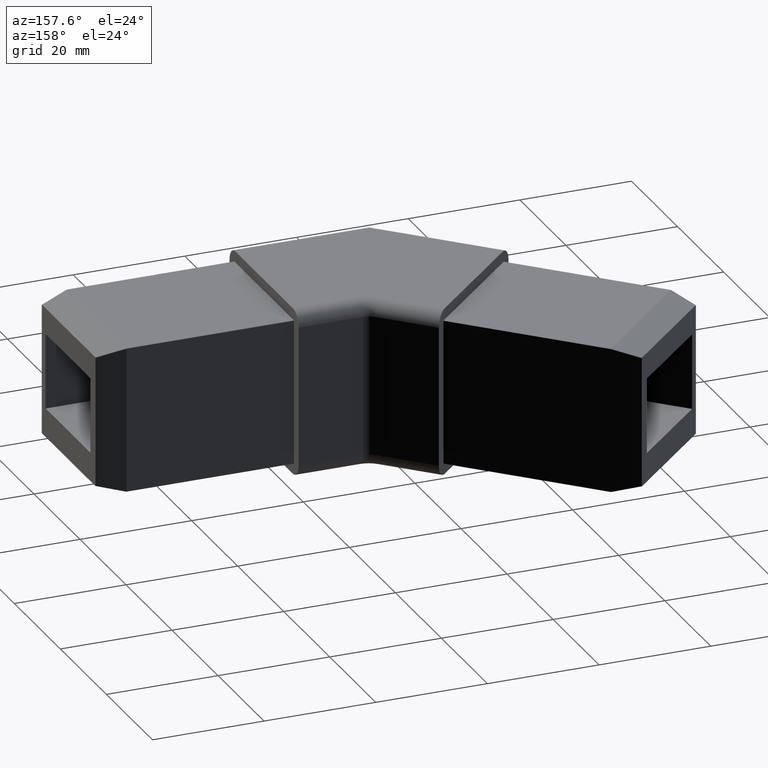
[diagram: clean part render]
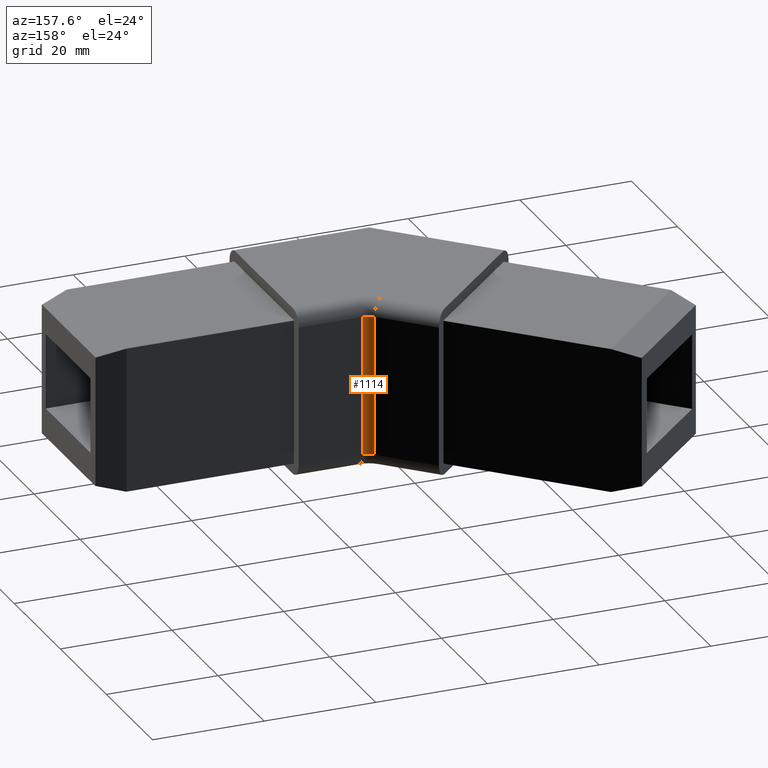
[diagram: same view with one face highlighted and labeled with its STEP entity id]
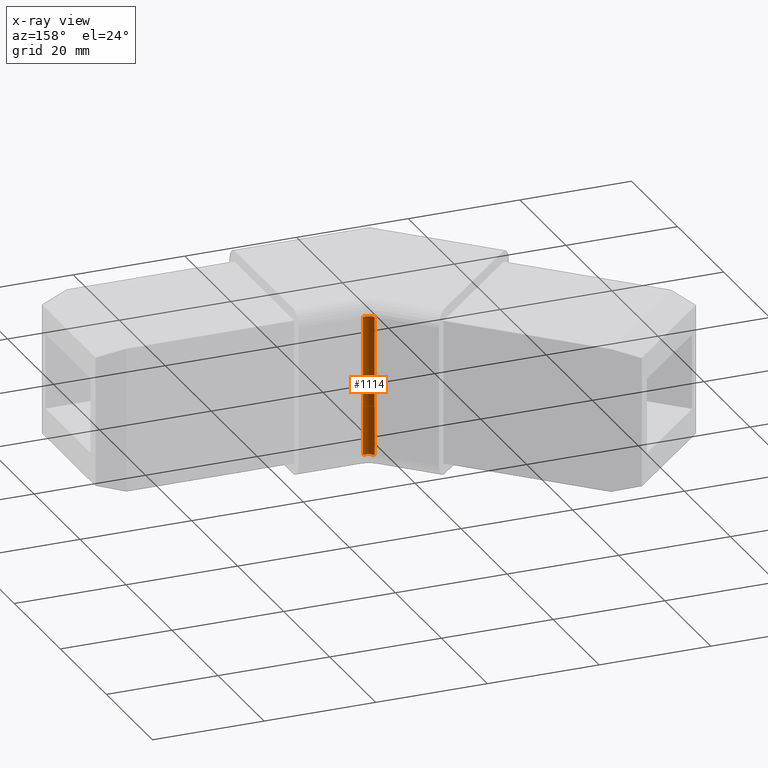
[diagram: x-ray of the same camera — body ghosted, the highlighted face saturated]
A machine part, auxiliary view. The second image highlights one B-rep face of the part: STEP entity #1114.
The next image is the same camera in x-ray: the body ghosted, the highlighted face saturated — about 0% of this face is hidden behind the body in this view.
In plain terms, the highlighted cylindrical surface (edge-blend (fillet) strip) has radius 2.5 mm, axis along (0, 0, 1).
Its self-contained STEP definition (entity closure, byte-faithful):
#33=CIRCLE('',#1236,2.5);
#37=CIRCLE('',#1242,2.5);
#102=CYLINDRICAL_SURFACE('',#1245,2.5);
#152=FACE_OUTER_BOUND('',#216,.T.);
#216=EDGE_LOOP('',(#929,#930,#931,#932));
#313=LINE('',#1877,#415);
#314=LINE('',#1878,#416);
#415=VECTOR('',#1535,10.);
#416=VECTOR('',#1536,10.);
#521=VERTEX_POINT('',#1856);
#522=VERTEX_POINT('',#1858);
#525=VERTEX_POINT('',#1868);
#527=VERTEX_POINT('',#1871);
#663=EDGE_CURVE('',#522,#521,#33,.F.);
#669=EDGE_CURVE('',#527,#525,#37,.F.);
#672=EDGE_CURVE('',#525,#522,#313,.T.);
#673=EDGE_CURVE('',#521,#527,#314,.T.);
#929=ORIENTED_EDGE('',*,*,#669,.T.);
#930=ORIENTED_EDGE('',*,*,#672,.T.);
#931=ORIENTED_EDGE('',*,*,#663,.T.);
#932=ORIENTED_EDGE('',*,*,#673,.T.);
#1114=ADVANCED_FACE('',(#152),#102,.F.);
#1236=AXIS2_PLACEMENT_3D('',#1859,#1513,#1514);
#1242=AXIS2_PLACEMENT_3D('',#1872,#1527,#1528);
#1245=AXIS2_PLACEMENT_3D('',#1876,#1533,#1534);
#1513=DIRECTION('center_axis',(0.,0.,1.));
#1514=DIRECTION('ref_axis',(0.,-1.,0.));
#1527=DIRECTION('center_axis',(0.,0.,-1.));
#1528=DIRECTION('ref_axis',(-0.707106781186548,-0.707106781186548,0.));
#1533=DIRECTION('center_axis',(0.,0.,1.));
#1534=DIRECTION('ref_axis',(-0.38268343236509,-0.923879532511287,0.));
#1535=DIRECTION('',(0.,0.,-1.));
#1536=DIRECTION('',(0.,0.,1.));
#1856=CARTESIAN_POINT('',(5.48097038856281,15.7322330470336,2.5));
#1858=CARTESIAN_POINT('',(7.24873734152918,15.,2.5));
#1859=CARTESIAN_POINT('Origin',(7.24873734152918,17.5,2.5));
#1868=CARTESIAN_POINT('',(7.24873734152918,15.,27.5));
#1871=CARTESIAN_POINT('',(5.48097038856281,15.7322330470336,27.5));
#1872=CARTESIAN_POINT('Origin',(7.24873734152918,17.5,27.5));
#1876=CARTESIAN_POINT('Origin',(7.24873734152918,17.5,0.));
#1877=CARTESIAN_POINT('',(7.24873734152918,15.,0.));
#1878=CARTESIAN_POINT('',(5.48097038856281,15.7322330470336,0.));